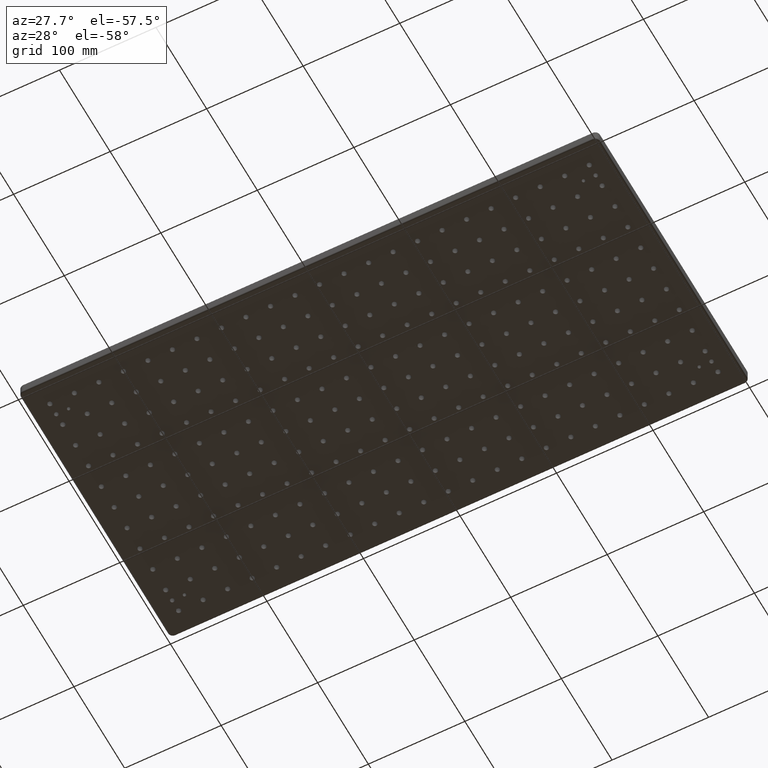
[diagram: clean part render]
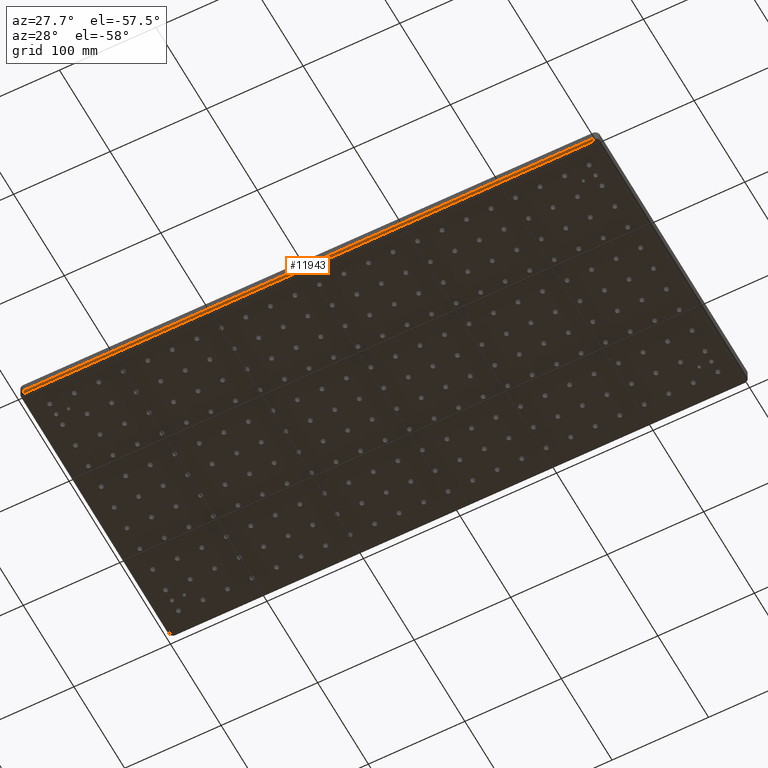
[diagram: same view with one face highlighted and labeled with its STEP entity id]
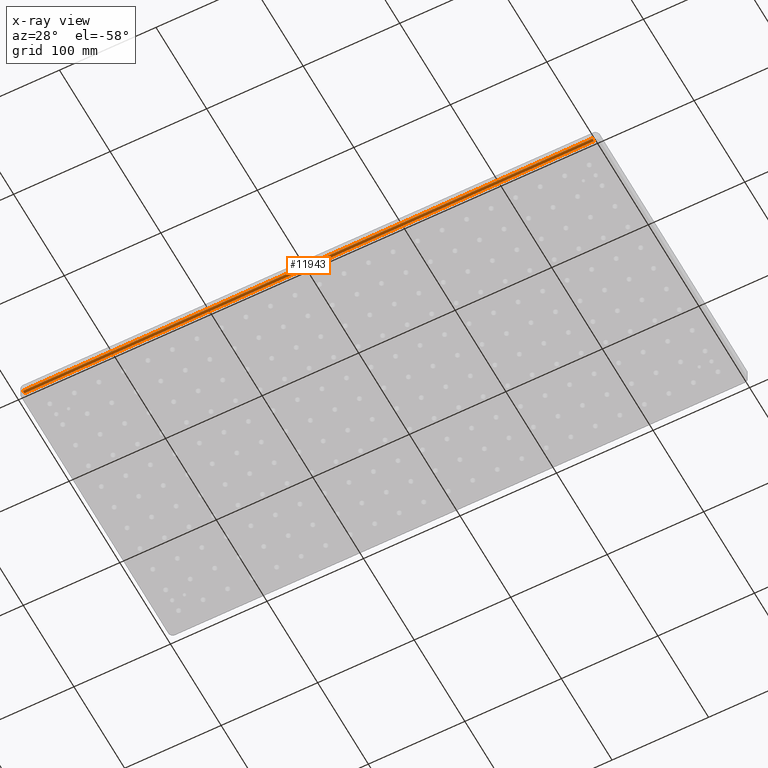
[diagram: x-ray of the same camera — body ghosted, the highlighted face saturated]
A machine part, auxiliary view. The second image highlights one B-rep face of the part: STEP entity #11943.
The next image is the same camera in x-ray: the body ghosted, the highlighted face saturated — about 0% of this face is hidden behind the body in this view.
In plain terms, the highlighted cylindrical surface (edge-blend (fillet) strip) has radius 2 mm, axis along (1, 0, 0).
Its self-contained STEP definition (entity closure, byte-faithful):
#154 = CARTESIAN_POINT ( 'NONE',  ( 594.9999999999998900, 2.000000000000000000, -11.00000000000000000 ) ) ;
#518 = DIRECTION ( 'NONE',  ( 1.000000000000000000, 0.0000000000000000000, 0.0000000000000000000 ) ) ;
#3279 = CARTESIAN_POINT ( 'NONE',  ( 4.999999999999999100, 1.999999999999998200, -11.00000000000000000 ) ) ;
#3353 = DIRECTION ( 'NONE',  ( 0.0000000000000000000, 0.0000000000000000000, -1.000000000000000000 ) ) ;
#3678 = CIRCLE ( 'NONE', #19353, 2.000000000000000000 ) ;
#4419 = LINE ( 'NONE', #14996, #9093 ) ;
#4650 = DIRECTION ( 'NONE',  ( 1.000000000000000000, 0.0000000000000000000, 0.0000000000000000000 ) ) ;
#5360 = EDGE_CURVE ( 'NONE', #9028, #13013, #10921, .T. ) ;
#5431 = CIRCLE ( 'NONE', #12351, 2.000000000000000000 ) ;
#5783 = DIRECTION ( 'NONE',  ( 1.000000000000000000, 0.0000000000000000000, 0.0000000000000000000 ) ) ;
#6374 = DIRECTION ( 'NONE',  ( 0.0000000000000000000, 0.0000000000000000000, -1.000000000000000000 ) ) ;
#7357 = ORIENTED_EDGE ( 'NONE', *, *, #14063, .F. ) ;
#7955 = DIRECTION ( 'NONE',  ( 1.000000000000000000, 0.0000000000000000000, 0.0000000000000000000 ) ) ;
#8816 = CARTESIAN_POINT ( 'NONE',  ( 0.0000000000000000000, 0.0000000000000000000, -11.00000000000000000 ) ) ;
#9028 = VERTEX_POINT ( 'NONE', #12130 ) ;
#9093 = VECTOR ( 'NONE', #16782, 1000.000000000000000 ) ;
#9448 = VECTOR ( 'NONE', #5783, 1000.000000000000000 ) ;
#9901 = FACE_OUTER_BOUND ( 'NONE', #15692, .T. ) ;
#10729 = ORIENTED_EDGE ( 'NONE', *, *, #15119, .F. ) ;
#10921 = LINE ( 'NONE', #8816, #9448 ) ;
#11943 = ADVANCED_FACE ( 'NONE', ( #9901 ), #19960, .T. ) ;
#12130 = CARTESIAN_POINT ( 'NONE',  ( 4.999999999999999100, 0.0000000000000000000, -11.00000000000000000 ) ) ;
#12351 = AXIS2_PLACEMENT_3D ( 'NONE', #154, #7955, #3353 ) ;
#13013 = VERTEX_POINT ( 'NONE', #13711 ) ;
#13040 = ORIENTED_EDGE ( 'NONE', *, *, #5360, .F. ) ;
#13064 = DIRECTION ( 'NONE',  ( 0.0000000000000000000, 0.0000000000000000000, -1.000000000000000000 ) ) ;
#13711 = CARTESIAN_POINT ( 'NONE',  ( 594.9999999999998900, 0.0000000000000000000, -11.00000000000000000 ) ) ;
#14063 = EDGE_CURVE ( 'NONE', #13013, #14313, #5431, .T. ) ;
#14313 = VERTEX_POINT ( 'NONE', #19985 ) ;
#14804 = CARTESIAN_POINT ( 'NONE',  ( 0.0000000000000000000, 1.999999999999999600, -11.00000000000000000 ) ) ;
#14996 = CARTESIAN_POINT ( 'NONE',  ( 0.0000000000000000000, 2.000000000000001800, -13.00000000000000000 ) ) ;
#15119 = EDGE_CURVE ( 'NONE', #14313, #17469, #4419, .T. ) ;
#15426 = EDGE_CURVE ( 'NONE', #9028, #17469, #3678, .T. ) ;
#15692 = EDGE_LOOP ( 'NONE', ( #18522, #10729, #7357, #13040 ) ) ;
#16782 = DIRECTION ( 'NONE',  ( -1.000000000000000000, -0.0000000000000000000, -0.0000000000000000000 ) ) ;
#17469 = VERTEX_POINT ( 'NONE', #17940 ) ;
#17940 = CARTESIAN_POINT ( 'NONE',  ( 4.999999999999999100, 1.999999999999998200, -13.00000000000000000 ) ) ;
#18522 = ORIENTED_EDGE ( 'NONE', *, *, #15426, .T. ) ;
#19281 = AXIS2_PLACEMENT_3D ( 'NONE', #14804, #518, #13064 ) ;
#19353 = AXIS2_PLACEMENT_3D ( 'NONE', #3279, #4650, #6374 ) ;
#19960 = CYLINDRICAL_SURFACE ( 'NONE', #19281, 2.000000000000000000 ) ;
#19985 = CARTESIAN_POINT ( 'NONE',  ( 594.9999999999998900, 1.999999999999999600, -13.00000000000000000 ) ) ;